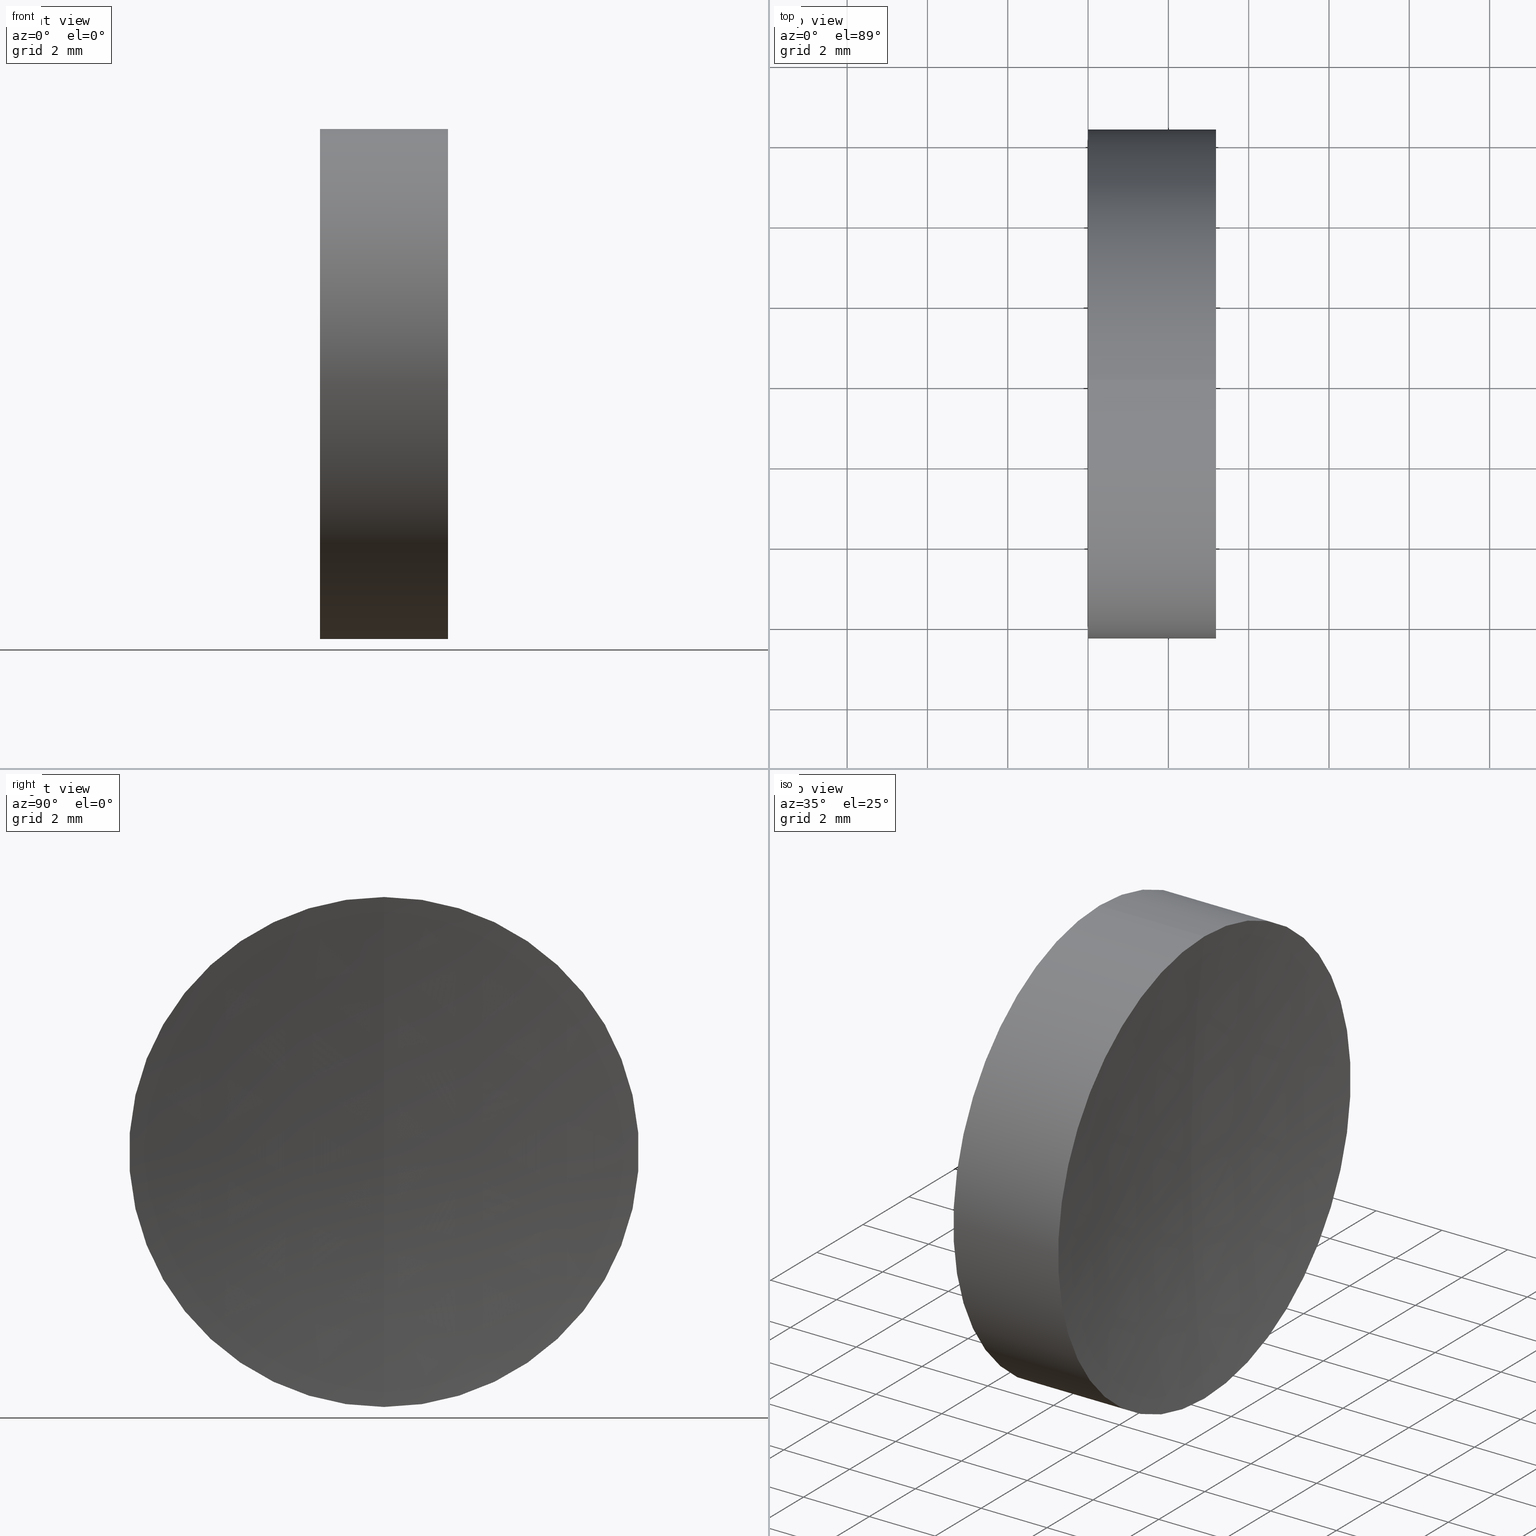
[diagram: canonical four-view strip — front | top / right | iso, engineering-drawing reading convention]
A machine part, canonical four-view strip (front | top / right | iso — engineering-drawing reading convention). The complete STEP part file that produces these views, byte-faithful:
ISO-10303-21;
HEADER;
FILE_DESCRIPTION (( 'STEP AP214' ),
    '1' );
FILE_NAME ('432501.STEP',
    '2019-08-26T08:24:49',
    ( 'user' ),
    ( '΢���й�' ),
    'SwSTEP 2.0',
    'SolidWorks 2016',
    '' );
FILE_SCHEMA (( 'AUTOMOTIVE_DESIGN' ));
ENDSEC;

DATA;
#1 = UNCERTAINTY_MEASURE_WITH_UNIT (LENGTH_MEASURE( 1.000000000000000100E-005 ), #61, 'distance_accuracy_value', 'NONE');
#2 = ADVANCED_FACE ( 'NONE', ( #120 ), #37, .F. ) ;
#3 =( GEOMETRIC_REPRESENTATION_CONTEXT ( 3 ) GLOBAL_UNCERTAINTY_ASSIGNED_CONTEXT ( ( #1 ) ) GLOBAL_UNIT_ASSIGNED_CONTEXT ( ( #61, #151, #73 ) ) REPRESENTATION_CONTEXT ( 'NONE', 'WORKASPACE' ) );
#4 = CIRCLE ( 'NONE', #103, 50.00000000000000000 ) ;
#5 = DIRECTION ( 'NONE',  ( -1.000000000000000000, -0.0000000000000000000, -0.0000000000000000000 ) ) ;
#6 = DIRECTION ( 'NONE',  ( -1.000000000000000000, -0.0000000000000000000, -0.0000000000000000000 ) ) ;
#7 = CARTESIAN_POINT ( 'NONE',  ( 52.78000000000000100, 0.0000000000000000000, 0.0000000000000000000 ) ) ;
#8 = CIRCLE ( 'NONE', #147, 6.349999999999999600 ) ;
#9 = EDGE_LOOP ( 'NONE', ( #65, #99, #63 ) ) ;
#10 =( NAMED_UNIT ( * ) SI_UNIT ( $, .STERADIAN. ) SOLID_ANGLE_UNIT ( ) );
#11 = DIRECTION ( 'NONE',  ( 1.000000000000000000, 0.0000000000000000000, 0.0000000000000000000 ) ) ;
#12 = FACE_OUTER_BOUND ( 'NONE', #17, .T. ) ;
#13 = STYLED_ITEM ( 'NONE', ( #89 ), #140 ) ;
#14 = MANIFOLD_SOLID_BREP ( '��ת1', #95 ) ;
#15 = EDGE_LOOP ( 'NONE', ( #143, #77, #122, #48 ) ) ;
#16 = DIRECTION ( 'NONE',  ( -1.000000000000000000, -0.0000000000000000000, -0.0000000000000000000 ) ) ;
#17 = EDGE_LOOP ( 'NONE', ( #158, #44, #166 ) ) ;
#18 = DIRECTION ( 'NONE',  ( 0.0000000000000000000, 1.000000000000000000, 0.0000000000000000000 ) ) ;
#19 = CARTESIAN_POINT ( 'NONE',  ( 52.78000000000000100, 0.0000000000000000000, 0.0000000000000000000 ) ) ;
#20 = APPLICATION_PROTOCOL_DEFINITION ( 'draft international standard', 'automotive_design', 1998, #30 ) ;
#21 = APPLICATION_CONTEXT ( 'automotive_design' ) ;
#22 = EDGE_CURVE ( 'NONE', #86, #112, #131, .T. ) ;
#23 = PRESENTATION_STYLE_ASSIGNMENT (( #81 ) ) ;
#24 =( GEOMETRIC_REPRESENTATION_CONTEXT ( 3 ) GLOBAL_UNCERTAINTY_ASSIGNED_CONTEXT ( ( #64 ) ) GLOBAL_UNIT_ASSIGNED_CONTEXT ( ( #162, #84, #10 ) ) REPRESENTATION_CONTEXT ( 'NONE', 'WORKASPACE' ) );
#25 = VERTEX_POINT ( 'NONE', #58 ) ;
#26 = DIRECTION ( 'NONE',  ( 0.0000000000000000000, 0.0000000000000000000, 1.000000000000000000 ) ) ;
#27 = ORIENTED_EDGE ( 'NONE', *, *, #137, .F. ) ;
#28 = FILL_AREA_STYLE ('',( #111 ) ) ;
#29 = DIRECTION ( 'NONE',  ( 0.0000000000000000000, 0.0000000000000000000, -1.000000000000000000 ) ) ;
#30 = APPLICATION_CONTEXT ( 'automotive_design' ) ;
#31 = PRESENTATION_LAYER_ASSIGNMENT (  '', '', ( #13 ) ) ;
#32 = AXIS2_PLACEMENT_3D ( 'NONE', #59, #85, #11 ) ;
#33 = ADVANCED_FACE ( 'NONE', ( #54 ), #96, .T. ) ;
#34 = EDGE_CURVE ( 'NONE', #86, #104, #4, .T. ) ;
#35 = MECHANICAL_DESIGN_GEOMETRIC_PRESENTATION_REPRESENTATION (  '', ( #13 ), #3 ) ;
#36 = PRODUCT_DEFINITION_SHAPE ( 'NONE', 'NONE',  #141 ) ;
#37 = SPHERICAL_SURFACE ( 'NONE', #69, 50.00000000000000000 ) ;
#38 = CARTESIAN_POINT ( 'NONE',  ( 0.0000000000000000000, 0.0000000000000000000, 0.0000000000000000000 ) ) ;
#39 = DIRECTION ( 'NONE',  ( 0.0000000000000000000, 0.0000000000000000000, 1.000000000000000000 ) ) ;
#40 = AXIS2_PLACEMENT_3D ( 'NONE', #78, #46, #127 ) ;
#41 = CARTESIAN_POINT ( 'NONE',  ( 0.0000000000000000000, 0.0000000000000000000, 6.350000000000005900 ) ) ;
#42 = DIRECTION ( 'NONE',  ( -1.000000000000000000, -0.0000000000000000000, -0.0000000000000000000 ) ) ;
#43 = LINE ( 'NONE', #41, #132 ) ;
#44 = ORIENTED_EDGE ( 'NONE', *, *, #53, .F. ) ;
#45 = CIRCLE ( 'NONE', #75, 6.350000000000012100 ) ;
#46 = DIRECTION ( 'NONE',  ( 1.000000000000000000, 0.0000000000000000000, 0.0000000000000000000 ) ) ;
#47 = SURFACE_SIDE_STYLE ('',( #128 ) ) ;
#48 = ORIENTED_EDGE ( 'NONE', *, *, #74, .F. ) ;
#49 = AXIS2_PLACEMENT_3D ( 'NONE', #138, #42, #57 ) ;
#50 = VERTEX_POINT ( 'NONE', #106 ) ;
#51 = AXIS2_PLACEMENT_3D ( 'NONE', #19, #113, #29 ) ;
#52 = ORIENTED_EDGE ( 'NONE', *, *, #137, .T. ) ;
#53 = EDGE_CURVE ( 'NONE', #25, #86, #45, .T. ) ;
#54 = FACE_OUTER_BOUND ( 'NONE', #152, .T. ) ;
#55 = CARTESIAN_POINT ( 'NONE',  ( 0.0000000000000000000, 0.0000000000000000000, 0.0000000000000000000 ) ) ;
#56 = CARTESIAN_POINT ( 'NONE',  ( 3.184864149797912900, 0.0000000000000000000, 0.0000000000000000000 ) ) ;
#57 = DIRECTION ( 'NONE',  ( 0.0000000000000000000, 0.0000000000000000000, 1.000000000000000000 ) ) ;
#58 = CARTESIAN_POINT ( 'NONE',  ( 3.184864149797912900, 0.0000000000000000000, 6.350000000000003200 ) ) ;
#59 = CARTESIAN_POINT ( 'NONE',  ( 0.0000000000000000000, 0.0000000000000000000, 0.0000000000000000000 ) ) ;
#60 = COLOUR_RGB ( '',1.000000000000000000, 1.000000000000000000, 1.000000000000000000 ) ;
#61 =( LENGTH_UNIT ( ) NAMED_UNIT ( * ) SI_UNIT ( .MILLI., .METRE. ) );
#62 = FACE_OUTER_BOUND ( 'NONE', #15, .T. ) ;
#63 = ORIENTED_EDGE ( 'NONE', *, *, #142, .F. ) ;
#64 = UNCERTAINTY_MEASURE_WITH_UNIT (LENGTH_MEASURE( 1.000000000000000100E-005 ), #162, 'distance_accuracy_value', 'NONE');
#65 = ORIENTED_EDGE ( 'NONE', *, *, #68, .F. ) ;
#66 = ADVANCED_FACE ( 'NONE', ( #62 ), #94, .T. ) ;
#67 = COLOUR_RGB ( '',1.000000000000000000, 1.000000000000000000, 1.000000000000000000 ) ;
#68 = EDGE_CURVE ( 'NONE', #86, #25, #153, .T. ) ;
#69 = AXIS2_PLACEMENT_3D ( 'NONE', #7, #18, #82 ) ;
#70 = DIRECTION ( 'NONE',  ( 0.0000000000000000000, -1.224646799147353200E-016, 1.000000000000000000 ) ) ;
#71 =( LENGTH_UNIT ( ) NAMED_UNIT ( * ) SI_UNIT ( .MILLI., .METRE. ) );
#72 = UNCERTAINTY_MEASURE_WITH_UNIT (LENGTH_MEASURE( 1.000000000000000100E-005 ), #71, 'distance_accuracy_value', 'NONE');
#73 =( NAMED_UNIT ( * ) SI_UNIT ( $, .STERADIAN. ) SOLID_ANGLE_UNIT ( ) );
#74 = EDGE_CURVE ( 'NONE', #25, #50, #43, .T. ) ;
#75 = AXIS2_PLACEMENT_3D ( 'NONE', #145, #16, #109 ) ;
#76 =( GEOMETRIC_REPRESENTATION_CONTEXT ( 3 ) GLOBAL_UNCERTAINTY_ASSIGNED_CONTEXT ( ( #72 ) ) GLOBAL_UNIT_ASSIGNED_CONTEXT ( ( #71, #160, #148 ) ) REPRESENTATION_CONTEXT ( 'NONE', 'WORKASPACE' ) );
#77 = ORIENTED_EDGE ( 'NONE', *, *, #22, .T. ) ;
#78 = CARTESIAN_POINT ( 'NONE',  ( 0.0000000000000000000, 0.0000000000000000000, 0.0000000000000000000 ) ) ;
#79 = DIRECTION ( 'NONE',  ( 0.0000000000000000000, 0.0000000000000000000, 1.000000000000000000 ) ) ;
#80 = VECTOR ( 'NONE', #126, 1000.000000000000000 ) ;
#81 = SURFACE_STYLE_USAGE ( .BOTH. , #149 ) ;
#82 = DIRECTION ( 'NONE',  ( 0.0000000000000000000, 0.0000000000000000000, 1.000000000000000000 ) ) ;
#83 = DIRECTION ( 'NONE',  ( 0.0000000000000000000, 0.0000000000000000000, 1.000000000000000000 ) ) ;
#84 =( NAMED_UNIT ( * ) PLANE_ANGLE_UNIT ( ) SI_UNIT ( $, .RADIAN. ) );
#85 = DIRECTION ( 'NONE',  ( 0.0000000000000000000, 0.0000000000000000000, 1.000000000000000000 ) ) ;
#86 = VERTEX_POINT ( 'NONE', #124 ) ;
#87 = MECHANICAL_DESIGN_GEOMETRIC_PRESENTATION_REPRESENTATION (  '', ( #101 ), #76 ) ;
#88 = PRODUCT_DEFINITION_FORMATION_WITH_SPECIFIED_SOURCE ( '�κ�', '', #163, .NOT_KNOWN. ) ;
#89 = PRESENTATION_STYLE_ASSIGNMENT (( #139 ) ) ;
#90 = CIRCLE ( 'NONE', #51, 50.00000000000000000 ) ;
#91 = DIRECTION ( 'NONE',  ( 0.0000000000000000000, 0.0000000000000000000, 1.000000000000000000 ) ) ;
#92 = CARTESIAN_POINT ( 'NONE',  ( 0.0000000000000000000, 0.0000000000000000000, 0.0000000000000000000 ) ) ;
#93 = PRESENTATION_LAYER_ASSIGNMENT (  '', '', ( #101 ) ) ;
#94 = CYLINDRICAL_SURFACE ( 'NONE', #125, 6.350000000000005900 ) ;
#95 = CLOSED_SHELL ( 'NONE', ( #66, #2, #155, #118, #33 ) ) ;
#96 = CYLINDRICAL_SURFACE ( 'NONE', #110, 6.350000000000005900 ) ;
#97 = PLANE ( 'NONE',  #40 ) ;
#98 = PRODUCT_CONTEXT ( 'NONE', #30, 'mechanical' ) ;
#99 = ORIENTED_EDGE ( 'NONE', *, *, #34, .T. ) ;
#100 = SHAPE_DEFINITION_REPRESENTATION ( #36, #140 ) ;
#101 = STYLED_ITEM ( 'NONE', ( #23 ), #14 ) ;
#102 = CIRCLE ( 'NONE', #49, 6.349999999999999600 ) ;
#103 = AXIS2_PLACEMENT_3D ( 'NONE', #135, #146, #70 ) ;
#104 = VERTEX_POINT ( 'NONE', #108 ) ;
#105 = SURFACE_STYLE_FILL_AREA ( #28 ) ;
#106 = CARTESIAN_POINT ( 'NONE',  ( 0.0000000000000000000, 0.0000000000000000000, 6.349999999999999600 ) ) ;
#107 = DIRECTION ( 'NONE',  ( -1.000000000000000000, -0.0000000000000000000, -0.0000000000000000000 ) ) ;
#108 = CARTESIAN_POINT ( 'NONE',  ( 2.779999999999997600, 0.0000000000000000000, 3.061616997868383000E-015 ) ) ;
#109 = DIRECTION ( 'NONE',  ( 0.0000000000000000000, 0.0000000000000000000, 1.000000000000000000 ) ) ;
#110 = AXIS2_PLACEMENT_3D ( 'NONE', #55, #134, #83 ) ;
#111 = FILL_AREA_STYLE_COLOUR ( '', #60 ) ;
#112 = VERTEX_POINT ( 'NONE', #144 ) ;
#113 = DIRECTION ( 'NONE',  ( 0.0000000000000000000, -1.000000000000000000, 0.0000000000000000000 ) ) ;
#114 = APPLICATION_PROTOCOL_DEFINITION ( 'draft international standard', 'automotive_design', 1998, #21 ) ;
#115 = AXIS2_PLACEMENT_3D ( 'NONE', #136, #157, #91 ) ;
#116 = PRODUCT_DEFINITION_CONTEXT ( 'detailed design', #21, 'design' ) ;
#117 = ORIENTED_EDGE ( 'NONE', *, *, #22, .F. ) ;
#118 = ADVANCED_FACE ( 'NONE', ( #12 ), #165, .F. ) ;
#119 = FACE_OUTER_BOUND ( 'NONE', #130, .T. ) ;
#120 = FACE_OUTER_BOUND ( 'NONE', #9, .T. ) ;
#121 = EDGE_CURVE ( 'NONE', #50, #112, #8, .T. ) ;
#122 = ORIENTED_EDGE ( 'NONE', *, *, #121, .F. ) ;
#123 = DIRECTION ( 'NONE',  ( -1.000000000000000000, -0.0000000000000000000, -0.0000000000000000000 ) ) ;
#124 = CARTESIAN_POINT ( 'NONE',  ( 3.184864149797912900, 7.776507174585696100E-016, -6.350000000000003200 ) ) ;
#125 = AXIS2_PLACEMENT_3D ( 'NONE', #38, #107, #39 ) ;
#126 = DIRECTION ( 'NONE',  ( -1.000000000000000000, -0.0000000000000000000, -0.0000000000000000000 ) ) ;
#127 = DIRECTION ( 'NONE',  ( 0.0000000000000000000, 0.0000000000000000000, -1.000000000000000000 ) ) ;
#128 = SURFACE_STYLE_FILL_AREA ( #129 ) ;
#129 = FILL_AREA_STYLE ('',( #150 ) ) ;
#130 = EDGE_LOOP ( 'NONE', ( #133, #52 ) ) ;
#131 = LINE ( 'NONE', #161, #80 ) ;
#132 = VECTOR ( 'NONE', #6, 1000.000000000000000 ) ;
#133 = ORIENTED_EDGE ( 'NONE', *, *, #121, .T. ) ;
#134 = DIRECTION ( 'NONE',  ( -1.000000000000000000, -0.0000000000000000000, -0.0000000000000000000 ) ) ;
#135 = CARTESIAN_POINT ( 'NONE',  ( 52.78000000000000100, 0.0000000000000000000, 0.0000000000000000000 ) ) ;
#136 = CARTESIAN_POINT ( 'NONE',  ( 52.78000000000000100, 0.0000000000000000000, 0.0000000000000000000 ) ) ;
#137 = EDGE_CURVE ( 'NONE', #112, #50, #102, .T. ) ;
#138 = CARTESIAN_POINT ( 'NONE',  ( 0.0000000000000000000, 0.0000000000000000000, 0.0000000000000000000 ) ) ;
#139 = SURFACE_STYLE_USAGE ( .BOTH. , #47 ) ;
#140 = ADVANCED_BREP_SHAPE_REPRESENTATION ( '432501', ( #14, #32 ), #24 ) ;
#141 = PRODUCT_DEFINITION ( 'δ֪', '', #88, #116 ) ;
#142 = EDGE_CURVE ( 'NONE', #25, #104, #90, .T. ) ;
#143 = ORIENTED_EDGE ( 'NONE', *, *, #53, .T. ) ;
#144 = CARTESIAN_POINT ( 'NONE',  ( 0.0000000000000000000, 7.776507174585696100E-016, -6.349999999999999600 ) ) ;
#145 = CARTESIAN_POINT ( 'NONE',  ( 3.184864149797912900, 0.0000000000000000000, 0.0000000000000000000 ) ) ;
#146 = DIRECTION ( 'NONE',  ( -0.0000000000000000000, 1.000000000000000000, 1.224646799147353200E-016 ) ) ;
#147 = AXIS2_PLACEMENT_3D ( 'NONE', #92, #5, #79 ) ;
#148 =( NAMED_UNIT ( * ) SI_UNIT ( $, .STERADIAN. ) SOLID_ANGLE_UNIT ( ) );
#149 = SURFACE_SIDE_STYLE ('',( #105 ) ) ;
#150 = FILL_AREA_STYLE_COLOUR ( '', #67 ) ;
#151 =( NAMED_UNIT ( * ) PLANE_ANGLE_UNIT ( ) SI_UNIT ( $, .RADIAN. ) );
#152 = EDGE_LOOP ( 'NONE', ( #117, #164, #154, #27 ) ) ;
#153 = CIRCLE ( 'NONE', #156, 6.350000000000012100 ) ;
#154 = ORIENTED_EDGE ( 'NONE', *, *, #74, .T. ) ;
#155 = ADVANCED_FACE ( 'NONE', ( #119 ), #97, .F. ) ;
#156 = AXIS2_PLACEMENT_3D ( 'NONE', #56, #123, #26 ) ;
#157 = DIRECTION ( 'NONE',  ( 0.0000000000000000000, 1.000000000000000000, 0.0000000000000000000 ) ) ;
#158 = ORIENTED_EDGE ( 'NONE', *, *, #34, .F. ) ;
#159 = PRODUCT_RELATED_PRODUCT_CATEGORY ( 'part', '', ( #163 ) ) ;
#160 =( NAMED_UNIT ( * ) PLANE_ANGLE_UNIT ( ) SI_UNIT ( $, .RADIAN. ) );
#161 = CARTESIAN_POINT ( 'NONE',  ( 0.0000000000000000000, 7.776507174585700100E-016, -6.350000000000005900 ) ) ;
#162 =( LENGTH_UNIT ( ) NAMED_UNIT ( * ) SI_UNIT ( .MILLI., .METRE. ) );
#163 = PRODUCT ( '432501', '432501', '', ( #98 ) ) ;
#164 = ORIENTED_EDGE ( 'NONE', *, *, #68, .T. ) ;
#165 = SPHERICAL_SURFACE ( 'NONE', #115, 50.00000000000000000 ) ;
#166 = ORIENTED_EDGE ( 'NONE', *, *, #142, .T. ) ;
ENDSEC;
END-ISO-10303-21;
